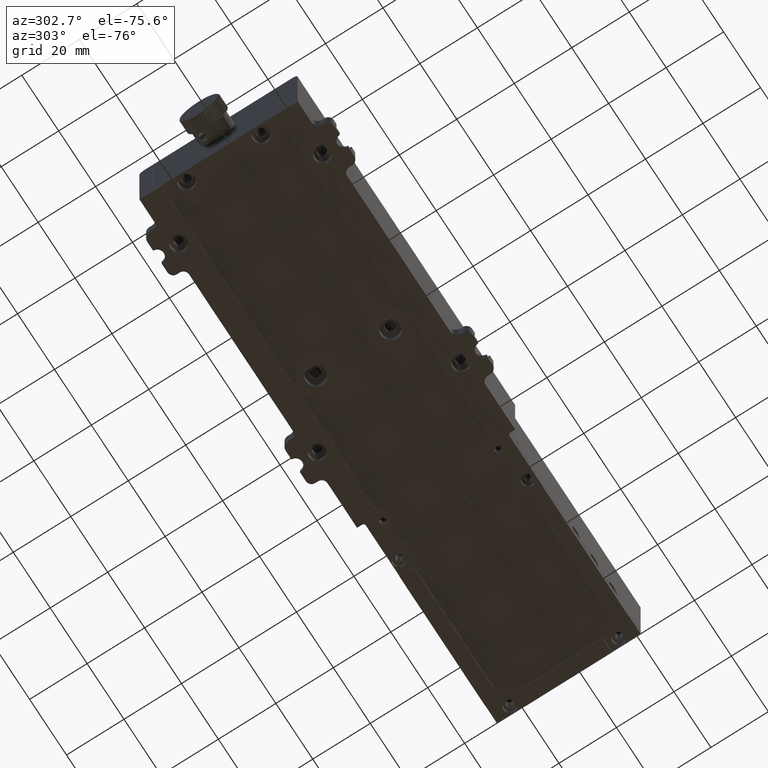
[diagram: clean part render]
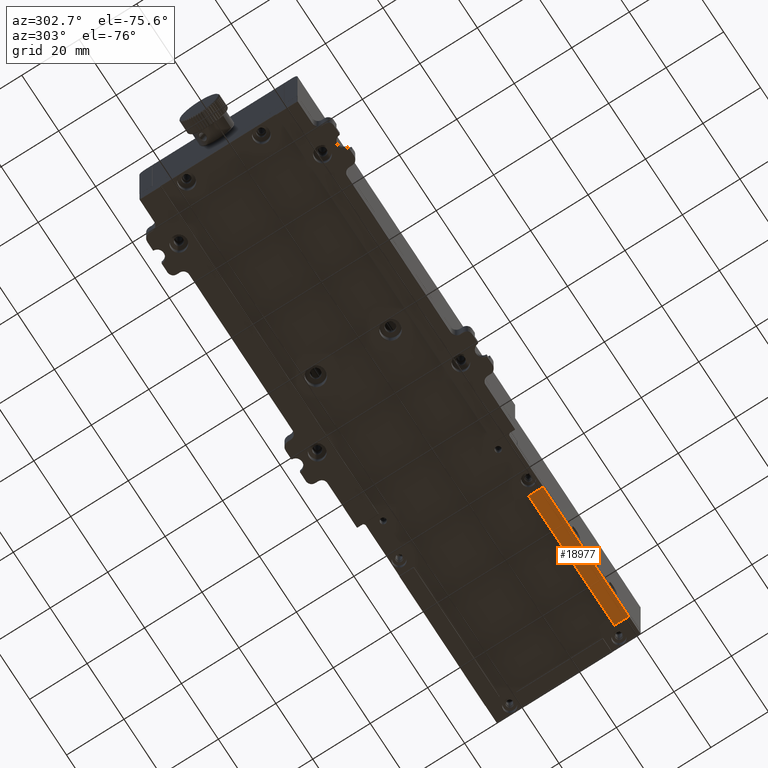
[diagram: same view with one face highlighted and labeled with its STEP entity id]
A machine part, auxiliary view. The second image highlights one B-rep face of the part: STEP entity #18977.
In plain terms, the highlighted planar face has unit normal (0, 0, 1).
Its self-contained STEP definition (entity closure, byte-faithful):
#1043 = DIRECTION ( 'NONE',  ( 0.000000000000000000, -1.000000000000000000, 0.000000000000000000 ) ) ;
#1481 = VERTEX_POINT ( 'NONE', #82077 ) ;
#2640 = CARTESIAN_POINT ( 'NONE',  ( 47.88988764044950130, -0.7415730337078720869, -5.000000000000000000 ) ) ;
#2963 = CARTESIAN_POINT ( 'NONE',  ( -89.11011235955059817, 49.25842696629209883, -5.000000000000000000 ) ) ;
#3218 = VERTEX_POINT ( 'NONE', #8236 ) ;
#3249 = EDGE_CURVE ( 'NONE', #22351, #35077, #7796, .T. ) ;
#7796 = LINE ( 'NONE', #59847, #32772 ) ;
#8236 = CARTESIAN_POINT ( 'NONE',  ( 94.38988764044938762, -0.7415730337078720869, -5.000000000000000000 ) ) ;
#11319 = DIRECTION ( 'NONE',  ( -1.000000000000000000, 0.000000000000000000, 0.000000000000000000 ) ) ;
#12252 = CARTESIAN_POINT ( 'NONE',  ( 47.88988764044950130, 4.258426966292124582, -5.000000000000000000 ) ) ;
#15165 = DIRECTION ( 'NONE',  ( 1.000000000000000000, 0.000000000000000000, 0.000000000000000000 ) ) ;
#16106 = LINE ( 'NONE', #75499, #68208 ) ;
#16127 = EDGE_CURVE ( 'NONE', #1481, #3218, #45717, .T. ) ;
#16763 = ORIENTED_EDGE ( 'NONE', *, *, #81791, .T. ) ;
#18977 = ADVANCED_FACE ( 'NONE', ( #35904 ), #62333, .F. ) ;
#22351 = VERTEX_POINT ( 'NONE', #2640 ) ;
#29037 = CARTESIAN_POINT ( 'NONE',  ( 94.38988764044938762, 4.258426966292124582, -5.000000000000000000 ) ) ;
#31549 = AXIS2_PLACEMENT_3D ( 'NONE', #2963, #40695, #67125 ) ;
#32772 = VECTOR ( 'NONE', #81456, 1000.000000000000000 ) ;
#34034 = ORIENTED_EDGE ( 'NONE', *, *, #71928, .T. ) ;
#35077 = VERTEX_POINT ( 'NONE', #12252 ) ;
#35904 = FACE_OUTER_BOUND ( 'NONE', #41812, .T. ) ;
#40125 = VECTOR ( 'NONE', #1043, 1000.000000000000000 ) ;
#40695 = DIRECTION ( 'NONE',  ( 0.000000000000000000, 0.000000000000000000, 1.000000000000000000 ) ) ;
#41812 = EDGE_LOOP ( 'NONE', ( #82036, #34034, #61065, #16763 ) ) ;
#45717 = LINE ( 'NONE', #52637, #40125 ) ;
#49634 = VECTOR ( 'NONE', #15165, 1000.000000000000000 ) ;
#52637 = CARTESIAN_POINT ( 'NONE',  ( 94.38988764044938762, -0.7415730337078720869, -5.000000000000000000 ) ) ;
#59847 = CARTESIAN_POINT ( 'NONE',  ( 47.88988764044950130, -0.7415730337078720869, -5.000000000000000000 ) ) ;
#61065 = ORIENTED_EDGE ( 'NONE', *, *, #3249, .T. ) ;
#62333 = PLANE ( 'NONE',  #31549 ) ;
#67125 = DIRECTION ( 'NONE',  ( 1.000000000000000000, 0.000000000000000000, 0.000000000000000000 ) ) ;
#68208 = VECTOR ( 'NONE', #11319, 1000.000000000000000 ) ;
#71928 = EDGE_CURVE ( 'NONE', #3218, #22351, #16106, .T. ) ;
#74979 = LINE ( 'NONE', #29037, #49634 ) ;
#75499 = CARTESIAN_POINT ( 'NONE',  ( 94.38988764044938762, -0.7415730337078720869, -5.000000000000000000 ) ) ;
#81456 = DIRECTION ( 'NONE',  ( 0.000000000000000000, 1.000000000000000000, 0.000000000000000000 ) ) ;
#81791 = EDGE_CURVE ( 'NONE', #35077, #1481, #74979, .T. ) ;
#82036 = ORIENTED_EDGE ( 'NONE', *, *, #16127, .T. ) ;
#82077 = CARTESIAN_POINT ( 'NONE',  ( 94.38988764044938762, 4.258426966292124582, -5.000000000000000000 ) ) ;